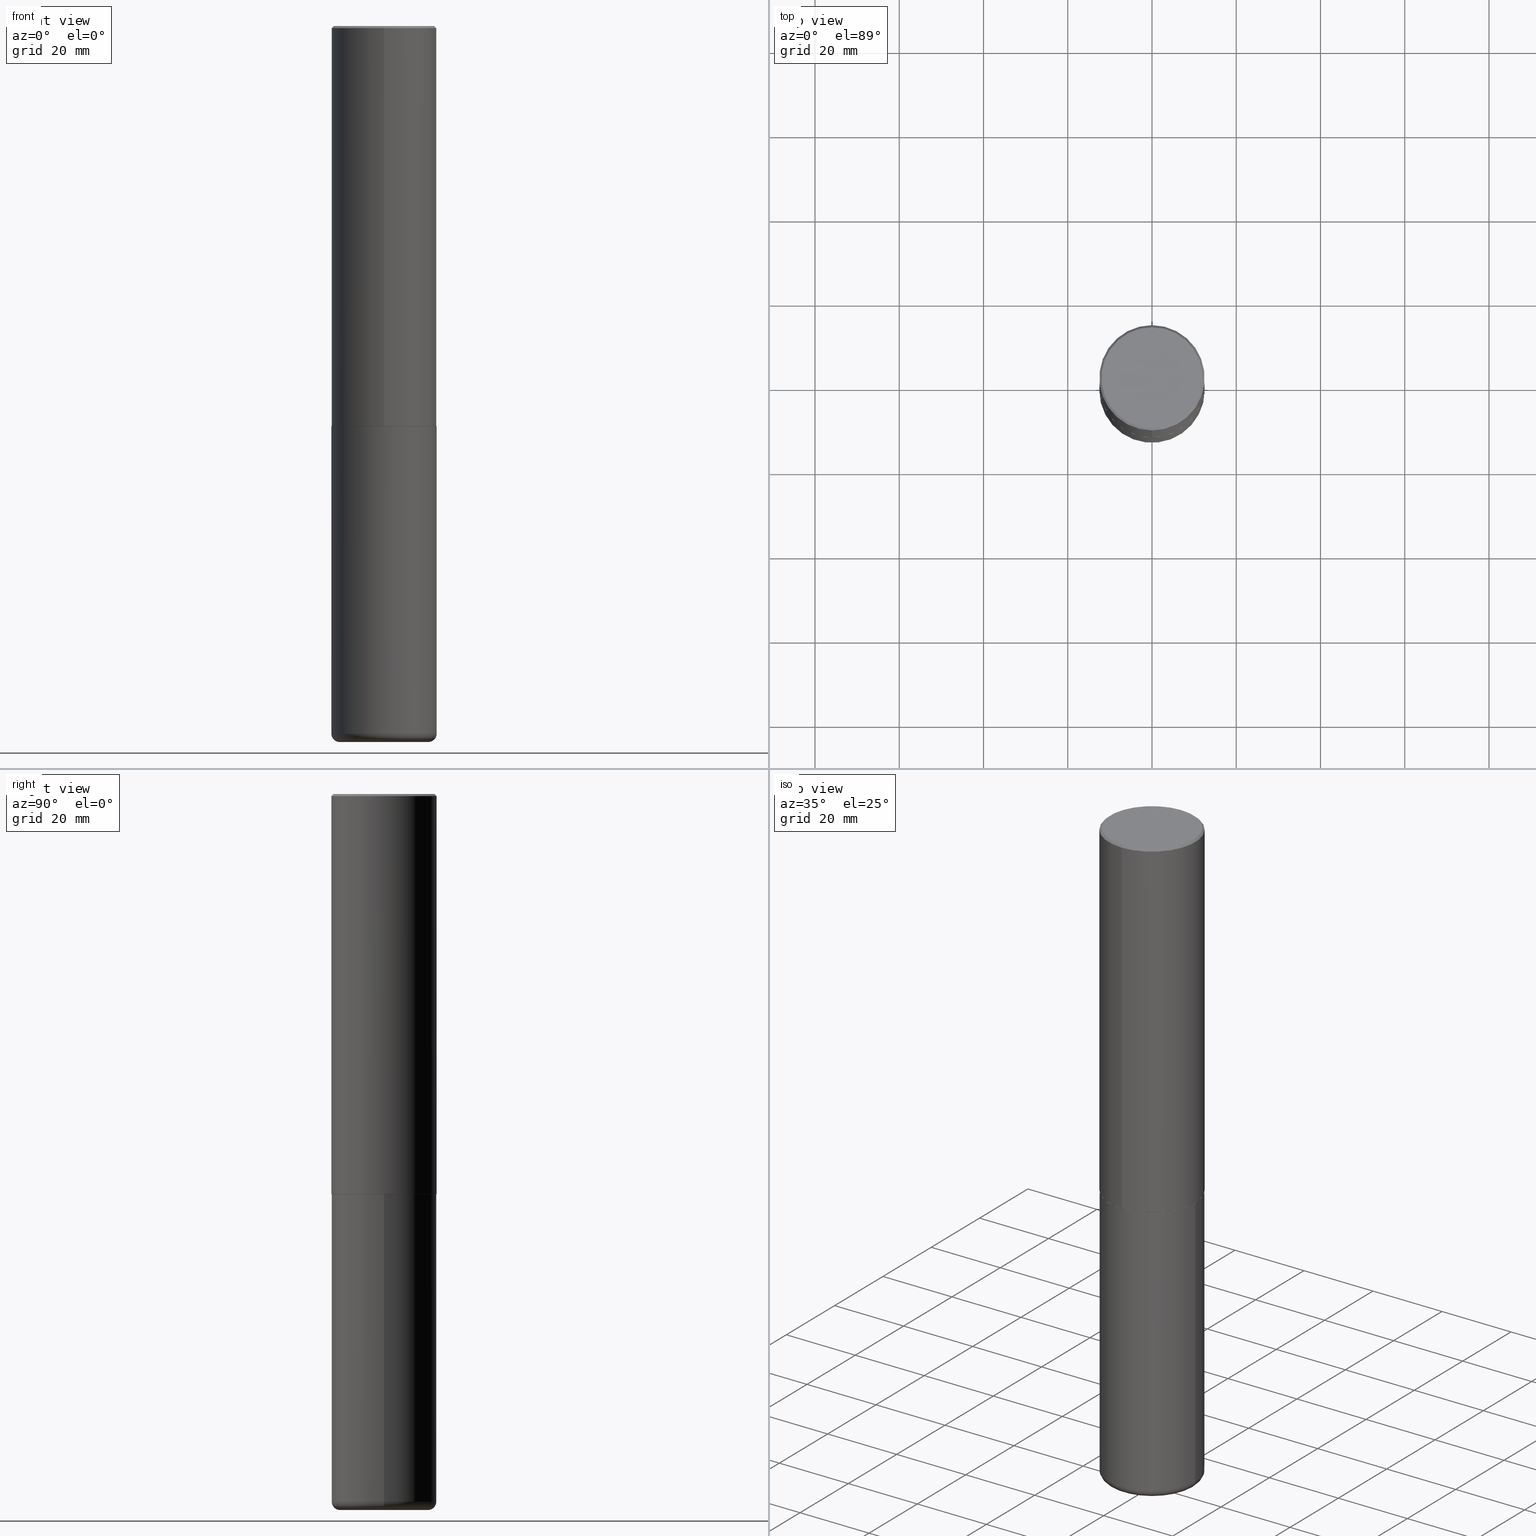
[diagram: canonical four-view strip — front | top / right | iso, engineering-drawing reading convention]
A machine part, canonical four-view strip (front | top / right | iso — engineering-drawing reading convention). The complete STEP part file that produces these views, byte-faithful:
ISO-10303-21;
HEADER;
FILE_DESCRIPTION (( 'STEP AP203' ),
    '1' );
FILE_NAME ('47619.STEP',
    '2024-03-06T19:43:05',
    ( '' ),
    ( '' ),
    'SwSTEP 2.0',
    'SolidWorks 2023',
    '' );
FILE_SCHEMA (( 'CONFIG_CONTROL_DESIGN' ));
ENDSEC;

DATA;
#1 = EDGE_LOOP ( 'NONE', ( #212, #139, #128, #180 ) ) ;
#2 = APPLICATION_PROTOCOL_DEFINITION ( 'international standard', 'config_control_design', 1994, #78 ) ;
#3 = CALENDAR_DATE ( 2024, 6, 3 ) ;
#4 = DIRECTION ( 'NONE',  ( 1.000000000000000000, -6.982962677686264344E-15, 4.883557194083111780E-29 ) ) ;
#5 = CONICAL_SURFACE ( 'NONE', #45, 0.4911499999999999755, 0.7853981633980288146 ) ;
#6 = APPROVAL_ROLE ( '' ) ;
#7 = DESIGN_CONTEXT ( 'detailed design', #109, 'design' ) ;
#8 = ORIENTED_EDGE ( 'NONE', *, *, #182, .F. ) ;
#9 = MECHANICAL_CONTEXT ( 'NONE', #78, 'mechanical' ) ;
#10 = ORIENTED_EDGE ( 'NONE', *, *, #232, .F. ) ;
#11 = PERSON_AND_ORGANIZATION ( #218, #291 ) ;
#12 = ORIENTED_EDGE ( 'NONE', *, *, #159, .F. ) ;
#13 = CIRCLE ( 'NONE', #235, 0.4921500000000003650 ) ;
#14 = VECTOR ( 'NONE', #324, 39.37007874015748143 ) ;
#15 = VERTEX_POINT ( 'NONE', #89 ) ;
#16 = VERTEX_POINT ( 'NONE', #20 ) ;
#17 = LINE ( 'NONE', #219, #104 ) ;
#18 = AXIS2_PLACEMENT_3D ( 'NONE', #32, #413, #126 ) ;
#19 = FACE_OUTER_BOUND ( 'NONE', #415, .T. ) ;
#20 = CARTESIAN_POINT ( 'NONE',  ( -0.4921499999999999764, -1.457898653934845976E-14, -3.740100000000000424 ) ) ;
#21 = DIRECTION ( 'NONE',  ( -2.445468806185136597E-29, 3.491481338843145583E-15, 1.000000000000000000 ) ) ;
#22 = AXIS2_PLACEMENT_3D ( 'NONE', #122, #254, #326 ) ;
#23 = DIRECTION ( 'NONE',  ( -6.982962677686265922E-15, -1.000000000000000000, 3.330506545156063496E-15 ) ) ;
#24 = AXIS2_PLACEMENT_3D ( 'NONE', #250, #21, #284 ) ;
#25 = EDGE_CURVE ( 'NONE', #16, #320, #401, .T. ) ;
#26 = CARTESIAN_POINT ( 'NONE',  ( 1.617481977786973037E-28, -2.309335587137633131E-14, -6.614199999999999413 ) ) ;
#27 = DIRECTION ( 'NONE',  ( 1.000000000000000000, -6.982962677686265922E-15, 4.876176775795935793E-29 ) ) ;
#28 = PERSON_AND_ORGANIZATION ( #218, #291 ) ;
#29 = DIRECTION ( 'NONE',  ( -2.445976594451651952E-29, 3.490754157143982552E-15, 1.000000000000000000 ) ) ;
#30 = CC_DESIGN_PERSON_AND_ORGANIZATION_ASSIGNMENT ( #130, #100, ( #37 ) ) ;
#31 = AXIS2_PLACEMENT_3D ( 'NONE', #323, #363, #168 ) ;
#32 = CARTESIAN_POINT ( 'NONE',  ( 9.148197060908621523E-29, -1.305576962313420868E-14, -3.740099999999999980 ) ) ;
#33 = FACE_OUTER_BOUND ( 'NONE', #213, .T. ) ;
#34 = APPROVAL_DATE_TIME ( #199, #67 ) ;
#35 = CARTESIAN_POINT ( 'NONE',  ( 9.148197060908621523E-29, -1.305576962313420868E-14, -3.740099999999999980 ) ) ;
#36 = EDGE_LOOP ( 'NONE', ( #243, #312 ) ) ;
#37 = SECURITY_CLASSIFICATION ( '', '', #39 ) ;
#38 = AXIS2_PLACEMENT_3D ( 'NONE', #62, #198, #325 ) ;
#39 = SECURITY_CLASSIFICATION_LEVEL ( 'unclassified' ) ;
#40 = VERTEX_POINT ( 'NONE', #220 ) ;
#41 = APPROVAL_DATE_TIME ( #210, #76 ) ;
#42 = EDGE_LOOP ( 'NONE', ( #114, #79, #43, #12 ) ) ;
#43 = ORIENTED_EDGE ( 'NONE', *, *, #202, .T. ) ;
#44 = DIMENSIONAL_EXPONENTS ( 1.000000000000000000, 0.000000000000000000, 0.000000000000000000, 0.000000000000000000, 0.000000000000000000, 0.000000000000000000, 0.000000000000000000 ) ;
#45 = AXIS2_PLACEMENT_3D ( 'NONE', #35, #29, #349 ) ;
#46 = TOROIDAL_SURFACE ( 'NONE', #355, 0.4134499999999999287, 0.07870000000000021423 ) ;
#47 = VERTEX_POINT ( 'NONE', #341 ) ;
#48 = DIRECTION ( 'NONE',  ( -2.445468806185136597E-29, 3.491481338843145583E-15, 1.000000000000000000 ) ) ;
#49 = DIRECTION ( 'NONE',  ( -2.445976594451651952E-29, 3.490754157143982552E-15, 1.000000000000000000 ) ) ;
#50 = AXIS2_PLACEMENT_3D ( 'NONE', #129, #96, #352 ) ;
#51 = EDGE_CURVE ( 'NONE', #15, #392, #354, .T. ) ;
#52 = CARTESIAN_POINT ( 'NONE',  ( 4.891953188903329688E-31, -6.981508314288001687E-17, -0.02000000000000010797 ) ) ;
#53 = DIRECTION ( 'NONE',  ( 5.024295867790978808E-15, 0.7071067811869604647, 0.7071067811861345698 ) ) ;
#54 = CARTESIAN_POINT ( 'NONE',  ( 9.146297882013029477E-29, -1.305848935540725085E-14, -3.740100000000000424 ) ) ;
#55 = AXIS2_PLACEMENT_3D ( 'NONE', #160, #418, #225 ) ;
#56 = CYLINDRICAL_SURFACE ( 'NONE', #22, 0.4921500000000000874 ) ;
#57 = PRODUCT_DEFINITION_FORMATION_WITH_SPECIFIED_SOURCE ( 'ANY', '', #253, .NOT_KNOWN. ) ;
#58 = CARTESIAN_POINT ( 'NONE',  ( 0.4921499999999999764, -2.653002095319962551E-14, -6.614199999999999413 ) ) ;
#59 = DIRECTION ( 'NONE',  ( 1.000000000000000000, -6.982962677686264344E-15, 4.883557194083111780E-29 ) ) ;
#60 = ORIENTED_EDGE ( 'NONE', *, *, #146, .F. ) ;
#61 = CARTESIAN_POINT ( 'NONE',  ( 0.4134499999999999287, -2.625524137183267217E-14, -6.692899999999999849 ) ) ;
#62 = CARTESIAN_POINT ( 'NONE',  ( 1.636727817291649966E-28, -2.336813545274328780E-14, -6.692899999999999849 ) ) ;
#63 = LOCAL_TIME ( 14, 43, 5.000000000000000000, #140 ) ;
#64 = CALENDAR_DATE ( 2024, 6, 3 ) ;
#65 = CIRCLE ( 'NONE', #270, 0.4921499999999999764 ) ;
#66 = FACE_OUTER_BOUND ( 'NONE', #113, .T. ) ;
#67 = APPROVAL ( #132, 'UNSPECIFIED' ) ;
#68 = DATE_TIME_ROLE ( 'creation_date' ) ;
#69 = ORIENTED_EDGE ( 'NONE', *, *, #174, .F. ) ;
#70 = DIRECTION ( 'NONE',  ( 1.000000000000000000, -6.982962677686266711E-15, 0.000000000000000000 ) ) ;
#71 = EDGE_CURVE ( 'NONE', #175, #40, #17, .T. ) ;
#72 = DATE_TIME_ROLE ( 'classification_date' ) ;
#73 = ORIENTED_EDGE ( 'NONE', *, *, #306, .T. ) ;
#74 = CC_DESIGN_SECURITY_CLASSIFICATION ( #37, ( #57 ) ) ;
#75 = ORIENTED_EDGE ( 'NONE', *, *, #182, .T. ) ;
#76 = APPROVAL ( #391, 'UNSPECIFIED' ) ;
#77 = ORIENTED_EDGE ( 'NONE', *, *, #51, .F. ) ;
#78 = APPLICATION_CONTEXT ( 'configuration controlled 3d designs of mechanical parts and assemblies' ) ;
#79 = ORIENTED_EDGE ( 'NONE', *, *, #186, .T. ) ;
#80 = DIRECTION ( 'NONE',  ( 6.982962677686265922E-15, 1.000000000000000000, -3.486624039460257331E-15 ) ) ;
#81 = VECTOR ( 'NONE', #404, 39.37007874015748854 ) ;
#82 = LOCAL_TIME ( 14, 43, 5.000000000000000000, #164 ) ;
#83 = CLOSED_SHELL ( 'NONE', ( #215, #157, #88, #347, #262, #255, #278, #181 ) ) ;
#84 = TOROIDAL_SURFACE ( 'NONE', #309, 0.4134499999999999287, 0.07870000000000021423 ) ;
#85 = CYLINDRICAL_SURFACE ( 'NONE', #179, 0.4921499999999999764 ) ;
#86 = EDGE_CURVE ( 'NONE', #175, #242, #356, .T. ) ;
#87 = LINE ( 'NONE', #248, #81 ) ;
#88 = ADVANCED_FACE ( 'NONE', ( #19 ), #405, .T. ) ;
#89 = CARTESIAN_POINT ( 'NONE',  ( -3.376394089603257868E-15, -0.4921499999999999764, -0.01999999999999839059 ) ) ;
#90 = DIRECTION ( 'NONE',  ( -6.982962677686265922E-15, -1.000000000000000000, 3.490754157143982552E-15 ) ) ;
#91 = DIRECTION ( 'NONE',  ( -2.445468806185136597E-29, 3.491481338843145583E-15, 1.000000000000000000 ) ) ;
#92 = PRODUCT_DEFINITION_SHAPE ( 'NONE', 'NONE',  #321 ) ;
#93 = CARTESIAN_POINT ( 'NONE',  ( -3.429682119145517860E-15, -0.4911500000000130206, -3.740099999999998204 ) ) ;
#94 = CARTESIAN_POINT ( 'NONE',  ( 3.436665081823295777E-15, 0.4921499999999998098, -0.02000000000000182188 ) ) ;
#95 = CARTESIAN_POINT ( 'NONE',  ( 3.496936074043333291E-15, 0.4921500000000000874, -1.717974658438411319E-15 ) ) ;
#96 = DIRECTION ( 'NONE',  ( -2.445976594451651952E-29, 3.490754157143982552E-15, 1.000000000000000000 ) ) ;
#97 = DIRECTION ( 'NONE',  ( -2.445976594451651952E-29, 3.490754157143982552E-15, 1.000000000000000000 ) ) ;
#98 = ADVANCED_BREP_SHAPE_REPRESENTATION ( '47619', ( #335, #346, #31 ), #247 ) ;
#99 = VERTEX_POINT ( 'NONE', #345 ) ;
#100 = PERSON_AND_ORGANIZATION_ROLE ( 'classification_officer' ) ;
#101 = CONICAL_SURFACE ( 'NONE', #336, 0.4911499999999999755, 0.7853981633980288146 ) ;
#102 = AXIS2_PLACEMENT_3D ( 'NONE', #382, #206, #361 ) ;
#103 = PERSON_AND_ORGANIZATION ( #218, #291 ) ;
#104 = VECTOR ( 'NONE', #53, 39.37007874015748143 ) ;
#105 = CARTESIAN_POINT ( 'NONE',  ( 4.891953188903329688E-31, -6.981508314288001687E-17, -0.02000000000000010797 ) ) ;
#106 = EDGE_LOOP ( 'NONE', ( #60, #177, #280, #244 ) ) ;
#107 = EDGE_LOOP ( 'NONE', ( #367, #125, #398, #366 ) ) ;
#108 = CARTESIAN_POINT ( 'NONE',  ( 3.436665081823295777E-15, 0.4921499999999998098, -0.02000000000000182188 ) ) ;
#109 = APPLICATION_CONTEXT ( 'configuration controlled 3d designs of mechanical parts and assemblies' ) ;
#110 = EDGE_LOOP ( 'NONE', ( #173, #147, #77, #143 ) ) ;
#111 = LOCAL_TIME ( 14, 43, 5.000000000000000000, #137 ) ;
#112 = CC_DESIGN_PERSON_AND_ORGANIZATION_ASSIGNMENT ( #11, #204, ( #57 ) ) ;
#113 = EDGE_LOOP ( 'NONE', ( #399, #209, #275, #10 ) ) ;
#114 = ORIENTED_EDGE ( 'NONE', *, *, #223, .F. ) ;
#115 = PLANE ( 'NONE',  #318 ) ;
#116 = CIRCLE ( 'NONE', #371, 0.4721499999999996255 ) ;
#117 = CARTESIAN_POINT ( 'NONE',  ( 3.297005828269567997E-15, 0.4721499999999996255, -1.537349919972549256E-15 ) ) ;
#118 = DIRECTION ( 'NONE',  ( 2.445976594451651392E-29, -3.490754157143982552E-15, -1.000000000000000000 ) ) ;
#119 = CARTESIAN_POINT ( 'NONE',  ( 4.891953188903329688E-31, -6.981508314288001687E-17, -0.02000000000000010797 ) ) ;
#120 = VECTOR ( 'NONE', #158, 39.37007874015748143 ) ;
#121 = FACE_OUTER_BOUND ( 'NONE', #110, .T. ) ;
#122 = CARTESIAN_POINT ( 'NONE',  ( 0.000000000000000000, 0.000000000000000000, 0.000000000000000000 ) ) ;
#123 = DIRECTION ( 'NONE',  ( -2.445468806185136597E-29, 3.491481338843145583E-15, 1.000000000000000000 ) ) ;
#124 = CARTESIAN_POINT ( 'NONE',  ( 1.636727817291649966E-28, -2.336813545274328780E-14, -6.692899999999999849 ) ) ;
#125 = ORIENTED_EDGE ( 'NONE', *, *, #396, .T. ) ;
#126 = DIRECTION ( 'NONE',  ( -6.982962677686265922E-15, -1.000000000000000000, 3.337287582609300506E-15 ) ) ;
#127 = FACE_OUTER_BOUND ( 'NONE', #238, .T. ) ;
#128 = ORIENTED_EDGE ( 'NONE', *, *, #306, .F. ) ;
#129 = CARTESIAN_POINT ( 'NONE',  ( -5.420756467185317189E-45, 7.736185299407739239E-31, 2.216193106459615290E-16 ) ) ;
#130 = PERSON_AND_ORGANIZATION ( #218, #291 ) ;
#131 = DIRECTION ( 'NONE',  ( -2.445976594451651672E-29, 3.490754157143982552E-15, 1.000000000000000000 ) ) ;
#132 = APPROVAL_STATUS ( 'not_yet_approved' ) ;
#133 = EDGE_CURVE ( 'NONE', #310, #16, #402, .T. ) ;
#134 = DIRECTION ( 'NONE',  ( -6.982962677686266711E-15, -1.000000000000000000, 3.491481338843145583E-15 ) ) ;
#135 = AXIS2_PLACEMENT_3D ( 'NONE', #377, #340, #90 ) ;
#136 = EDGE_CURVE ( 'NONE', #308, #40, #13, .T. ) ;
#137 = COORDINATED_UNIVERSAL_TIME_OFFSET ( 5, 0, .BEHIND. ) ;
#138 = CIRCLE ( 'NONE', #397, 0.07870000000000017260 ) ;
#139 = ORIENTED_EDGE ( 'NONE', *, *, #152, .T. ) ;
#140 = COORDINATED_UNIVERSAL_TIME_OFFSET ( 5, 0, .BEHIND. ) ;
#141 = ORIENTED_EDGE ( 'NONE', *, *, #133, .T. ) ;
#142 = PRODUCT_RELATED_PRODUCT_CATEGORY ( 'detail', '', ( #253 ) ) ;
#143 = ORIENTED_EDGE ( 'NONE', *, *, #202, .F. ) ;
#144 = AXIS2_PLACEMENT_3D ( 'NONE', #119, #49, #221 ) ;
#145 = ORIENTED_EDGE ( 'NONE', *, *, #51, .T. ) ;
#146 = EDGE_CURVE ( 'NONE', #47, #15, #87, .T. ) ;
#147 = ORIENTED_EDGE ( 'NONE', *, *, #223, .T. ) ;
#148 = DIRECTION ( 'NONE',  ( 2.445976594451651952E-29, -3.490754157143982552E-15, -1.000000000000000000 ) ) ;
#149 = CARTESIAN_POINT ( 'NONE',  ( -0.4921499999999999764, 3.496936074043332897E-15, -2.420853904668951509E-29 ) ) ;
#150 = DIRECTION ( 'NONE',  ( -2.445468806185136877E-29, 3.491481338843145188E-15, 1.000000000000000000 ) ) ;
#151 = CC_DESIGN_DATE_AND_TIME_ASSIGNMENT ( #359, #68, ( #321 ) ) ;
#152 = EDGE_CURVE ( 'NONE', #360, #310, #138, .T. ) ;
#153 = DIRECTION ( 'NONE',  ( -6.982962677686265922E-15, -1.000000000000000000, 3.486624039460257331E-15 ) ) ;
#154 = VECTOR ( 'NONE', #150, 39.37007874015748143 ) ;
#155 = CIRCLE ( 'NONE', #24, 0.4134499999999999287 ) ;
#156 = DIRECTION ( 'NONE',  ( -2.445976594451651952E-29, 3.490754157143982552E-15, 1.000000000000000000 ) ) ;
#157 = ADVANCED_FACE ( 'NONE', ( #121 ), #252, .T. ) ;
#158 = DIRECTION ( 'NONE',  ( -4.937700262167413974E-15, -0.7071067811869555797, 0.7071067811861394548 ) ) ;
#159 = EDGE_CURVE ( 'NONE', #392, #15, #339, .T. ) ;
#160 = CARTESIAN_POINT ( 'NONE',  ( 9.146297882013029477E-29, -1.305848935540725085E-14, -3.740100000000000424 ) ) ;
#161 = APPROVAL_PERSON_ORGANIZATION ( #169, #207, #165 ) ;
#162 = DIRECTION ( 'NONE',  ( 1.000000000000000000, -6.982962677686266711E-15, 0.000000000000000000 ) ) ;
#163 = AXIS2_PLACEMENT_3D ( 'NONE', #52, #287, #153 ) ;
#164 = COORDINATED_UNIVERSAL_TIME_OFFSET ( 5, 0, .BEHIND. ) ;
#165 = APPROVAL_ROLE ( '' ) ;
#166 = DIRECTION ( 'NONE',  ( -2.445976594451651392E-29, 3.490754157143982552E-15, 1.000000000000000000 ) ) ;
#167 = CC_DESIGN_PERSON_AND_ORGANIZATION_ASSIGNMENT ( #28, #293, ( #253 ) ) ;
#168 = DIRECTION ( 'NONE',  ( 1.000000000000000000, 0.000000000000000000, 0.000000000000000000 ) ) ;
#169 = PERSON_AND_ORGANIZATION ( #218, #291 ) ;
#170 = FACE_OUTER_BOUND ( 'NONE', #42, .T. ) ;
#171 =( CONVERSION_BASED_UNIT ( 'INCH', #236 ) LENGTH_UNIT ( ) NAMED_UNIT ( #44 ) );
#172 = EDGE_CURVE ( 'NONE', #360, #368, #155, .T. ) ;
#173 = ORIENTED_EDGE ( 'NONE', *, *, #136, .T. ) ;
#174 = EDGE_CURVE ( 'NONE', #47, #99, #116, .T. ) ;
#175 = VERTEX_POINT ( 'NONE', #403 ) ;
#176 = PERSON_AND_ORGANIZATION ( #218, #291 ) ;
#177 = ORIENTED_EDGE ( 'NONE', *, *, #393, .F. ) ;
#178 = ORIENTED_EDGE ( 'NONE', *, *, #172, .F. ) ;
#179 = AXIS2_PLACEMENT_3D ( 'NONE', #216, #48, #27 ) ;
#180 = ORIENTED_EDGE ( 'NONE', *, *, #344, .F. ) ;
#181 = ADVANCED_FACE ( 'NONE', ( #311 ), #115, .F. ) ;
#182 = EDGE_CURVE ( 'NONE', #320, #16, #65, .T. ) ;
#183 = DIRECTION ( 'NONE',  ( -2.445976594451651952E-29, 3.490754157143982552E-15, 1.000000000000000000 ) ) ;
#184 = DIRECTION ( 'NONE',  ( -2.445976594451651952E-29, 3.490754157143982552E-15, 1.000000000000000000 ) ) ;
#185 = CC_DESIGN_APPROVAL ( #76, ( #57 ) ) ;
#186 = EDGE_CURVE ( 'NONE', #40, #308, #251, .T. ) ;
#187 = CARTESIAN_POINT ( 'NONE',  ( 9.148197060908621523E-29, -1.305576962313420868E-14, -3.740099999999999980 ) ) ;
#188 = DIRECTION ( 'NONE',  ( 7.105427357601001859E-15, 1.000000000000000000, -3.491481338843145583E-15 ) ) ;
#189 = DIRECTION ( 'NONE',  ( -2.445468806185136597E-29, 3.491481338843145583E-15, 1.000000000000000000 ) ) ;
#190 = ADVANCED_FACE ( 'NONE', ( #370 ), #85, .T. ) ;
#191 = AXIS2_PLACEMENT_3D ( 'NONE', #342, #91, #372 ) ;
#192 = AXIS2_PLACEMENT_3D ( 'NONE', #239, #271, #70 ) ;
#193 = LINE ( 'NONE', #256, #386 ) ;
#194 = ORIENTED_EDGE ( 'NONE', *, *, #300, .F. ) ;
#195 = CARTESIAN_POINT ( 'NONE',  ( 1.617481977786973037E-28, -2.309335587137633131E-14, -6.614199999999999413 ) ) ;
#196 = LINE ( 'NONE', #94, #266 ) ;
#197 = APPROVAL_ROLE ( '' ) ;
#198 = DIRECTION ( 'NONE',  ( 2.438088387897960049E-29, -3.491481338843145188E-15, -1.000000000000000000 ) ) ;
#199 = DATE_AND_TIME ( #64, #82 ) ;
#200 = APPROVAL_DATE_TIME ( #237, #207 ) ;
#201 = LINE ( 'NONE', #95, #14 ) ;
#202 = EDGE_CURVE ( 'NONE', #308, #15, #260, .T. ) ;
#203 = PERSON_AND_ORGANIZATION ( #218, #291 ) ;
#204 = PERSON_AND_ORGANIZATION_ROLE ( 'design_supplier' ) ;
#205 = ORIENTED_EDGE ( 'NONE', *, *, #274, .F. ) ;
#206 = DIRECTION ( 'NONE',  ( -2.445468806185136597E-29, 3.491481338843145583E-15, 1.000000000000000000 ) ) ;
#207 = APPROVAL ( #233, 'UNSPECIFIED' ) ;
#208 = CONICAL_SURFACE ( 'NONE', #337, 0.4921499999999999209, 0.7853981633974467247 ) ;
#209 = ORIENTED_EDGE ( 'NONE', *, *, #71, .T. ) ;
#210 = DATE_AND_TIME ( #331, #111 ) ;
#211 = ORIENTED_EDGE ( 'NONE', *, *, #344, .T. ) ;
#212 = ORIENTED_EDGE ( 'NONE', *, *, #267, .T. ) ;
#213 = EDGE_LOOP ( 'NONE', ( #400, #302, #211, #395 ) ) ;
#214 = AXIS2_PLACEMENT_3D ( 'NONE', #381, #166, #379 ) ;
#215 = ADVANCED_FACE ( 'NONE', ( #66 ), #5, .T. ) ;
#216 = CARTESIAN_POINT ( 'NONE',  ( 0.000000000000000000, 0.000000000000000000, 0.000000000000000000 ) ) ;
#217 = CARTESIAN_POINT ( 'NONE',  ( -5.420756467185317189E-45, 7.736185299407739239E-31, 2.216193106459615290E-16 ) ) ;
#218 = PERSON ( 'UNSPECIFIED', 'UNSPECIFIED', 'UNSPECIFIED', ('UNSPECIFIED'), ('UNSPECIFIED'), ('UNSPECIFIED') ) ;
#219 = CARTESIAN_POINT ( 'NONE',  ( 3.489830646685823002E-15, 0.4911499999999869304, -3.740100000000001312 ) ) ;
#220 = CARTESIAN_POINT ( 'NONE',  ( 3.496936074043380229E-15, 0.4921499999999873198, -3.739100000000002311 ) ) ;
#221 = DIRECTION ( 'NONE',  ( -6.982962677686265922E-15, -1.000000000000000000, 3.486624039460257331E-15 ) ) ;
#222 = DIRECTION ( 'NONE',  ( -2.445468806185136597E-29, 3.491481338843145583E-15, 1.000000000000000000 ) ) ;
#223 = EDGE_CURVE ( 'NONE', #40, #392, #201, .T. ) ;
#224 = LINE ( 'NONE', #289, #120 ) ;
#225 = DIRECTION ( 'NONE',  ( -1.000000000000000000, 6.982962677686265922E-15, -4.876176775795935793E-29 ) ) ;
#226 = PERSON_AND_ORGANIZATION ( #218, #291 ) ;
#227 = ADVANCED_FACE ( 'NONE', ( #410 ), #294, .F. ) ;
#228 = FACE_OUTER_BOUND ( 'NONE', #384, .T. ) ;
#229 = ADVANCED_FACE ( 'NONE', ( #409 ), #84, .T. ) ;
#230 =( NAMED_UNIT ( * ) SI_UNIT ( $, .STERADIAN. ) SOLID_ANGLE_UNIT ( ) );
#231 = AXIS2_PLACEMENT_3D ( 'NONE', #195, #222, #162 ) ;
#232 = EDGE_CURVE ( 'NONE', #242, #308, #224, .T. ) ;
#233 = APPROVAL_STATUS ( 'not_yet_approved' ) ;
#234 = CARTESIAN_POINT ( 'NONE',  ( 0.4134499999999999287, -2.598046179046571568E-14, -6.614199999999999413 ) ) ;
#235 = AXIS2_PLACEMENT_3D ( 'NONE', #282, #183, #23 ) ;
#236 = LENGTH_MEASURE_WITH_UNIT ( LENGTH_MEASURE( 0.02539999999999999897 ), #394 );
#237 = DATE_AND_TIME ( #3, #63 ) ;
#238 = EDGE_LOOP ( 'NONE', ( #328, #279 ) ) ;
#239 = CARTESIAN_POINT ( 'NONE',  ( 1.617481977786973037E-28, -2.309335587137633131E-14, -6.614199999999999413 ) ) ;
#240 = ORIENTED_EDGE ( 'NONE', *, *, #146, .T. ) ;
#241 = CIRCLE ( 'NONE', #18, 0.4911499999999999755 ) ;
#242 = VERTEX_POINT ( 'NONE', #93 ) ;
#243 = ORIENTED_EDGE ( 'NONE', *, *, #393, .T. ) ;
#244 = ORIENTED_EDGE ( 'NONE', *, *, #159, .T. ) ;
#245 = DIRECTION ( 'NONE',  ( -6.982962677686265922E-15, -1.000000000000000000, 3.330506545156063496E-15 ) ) ;
#246 = CIRCLE ( 'NONE', #299, 0.4134499999999999287 ) ;
#247 =( GEOMETRIC_REPRESENTATION_CONTEXT ( 3 ) GLOBAL_UNCERTAINTY_ASSIGNED_CONTEXT ( ( #358 ) ) GLOBAL_UNIT_ASSIGNED_CONTEXT ( ( #171, #259, #230 ) ) REPRESENTATION_CONTEXT ( 'NONE', 'WORKASPACE' ) );
#248 = CARTESIAN_POINT ( 'NONE',  ( -3.376394089603257868E-15, -0.4921499999999999764, -0.01999999999999839059 ) ) ;
#249 = DIRECTION ( 'NONE',  ( 6.982962677686265922E-15, 1.000000000000000000, -3.490754157143982552E-15 ) ) ;
#250 = CARTESIAN_POINT ( 'NONE',  ( 1.636727817291649966E-28, -2.336813545274328780E-14, -6.692899999999999849 ) ) ;
#251 = CIRCLE ( 'NONE', #376, 0.4921500000000003650 ) ;
#252 = CYLINDRICAL_SURFACE ( 'NONE', #135, 0.4921500000000000874 ) ;
#253 = PRODUCT ( '47619', '47619', '', ( #9 ) ) ;
#254 = DIRECTION ( 'NONE',  ( -2.445976594451651952E-29, 3.490754157143982552E-15, 1.000000000000000000 ) ) ;
#255 = ADVANCED_FACE ( 'NONE', ( #411 ), #101, .T. ) ;
#256 = CARTESIAN_POINT ( 'NONE',  ( 0.4921499999999999764, -3.436665081823295777E-15, 2.399810400207969603E-29 ) ) ;
#257 = CC_DESIGN_APPROVAL ( #207, ( #37 ) ) ;
#258 = PLANE ( 'NONE',  #214 ) ;
#259 =( NAMED_UNIT ( * ) PLANE_ANGLE_UNIT ( ) SI_UNIT ( $, .RADIAN. ) );
#260 = LINE ( 'NONE', #292, #369 ) ;
#261 = CYLINDRICAL_SURFACE ( 'NONE', #102, 0.4921499999999999764 ) ;
#262 = ADVANCED_FACE ( 'NONE', ( #170 ), #56, .T. ) ;
#263 = DATE_AND_TIME ( #329, #343 ) ;
#264 = DIRECTION ( 'NONE',  ( -2.445468806185136877E-29, 3.491481338843145188E-15, 1.000000000000000000 ) ) ;
#265 = PERSON_AND_ORGANIZATION_ROLE ( 'creator' ) ;
#266 = VECTOR ( 'NONE', #351, 39.37007874015748143 ) ;
#267 = EDGE_CURVE ( 'NONE', #368, #360, #246, .T. ) ;
#268 = CIRCLE ( 'NONE', #285, 0.07870000000000017260 ) ;
#269 = DIRECTION ( 'NONE',  ( 1.000000000000000000, -6.982962677686279332E-15, 0.000000000000000000 ) ) ;
#270 = AXIS2_PLACEMENT_3D ( 'NONE', #54, #189, #316 ) ;
#271 = DIRECTION ( 'NONE',  ( -2.445468806185136597E-29, 3.491481338843145583E-15, 1.000000000000000000 ) ) ;
#272 = ORIENTED_EDGE ( 'NONE', *, *, #186, .F. ) ;
#273 = FACE_OUTER_BOUND ( 'NONE', #107, .T. ) ;
#274 = EDGE_CURVE ( 'NONE', #301, #320, #193, .T. ) ;
#275 = ORIENTED_EDGE ( 'NONE', *, *, #136, .F. ) ;
#276 = APPROVAL_PERSON_ORGANIZATION ( #203, #76, #6 ) ;
#277 = EDGE_LOOP ( 'NONE', ( #75, #295 ) ) ;
#278 = ADVANCED_FACE ( 'NONE', ( #127 ), #258, .F. ) ;
#279 = ORIENTED_EDGE ( 'NONE', *, *, #86, .F. ) ;
#280 = ORIENTED_EDGE ( 'NONE', *, *, #300, .T. ) ;
#281 = DIRECTION ( 'NONE',  ( 6.982962677686265922E-15, 1.000000000000000000, -3.486624039460257331E-15 ) ) ;
#282 = CARTESIAN_POINT ( 'NONE',  ( 9.145751084314172604E-29, -1.305227886897706845E-14, -3.739100000000000534 ) ) ;
#283 = DIRECTION ( 'NONE',  ( -6.982962677686265922E-15, -1.000000000000000000, 3.337287582609300506E-15 ) ) ;
#284 = DIRECTION ( 'NONE',  ( 1.000000000000000000, -6.982962677686261977E-15, 0.000000000000000000 ) ) ;
#285 = AXIS2_PLACEMENT_3D ( 'NONE', #234, #134, #269 ) ;
#286 = CLOSED_SHELL ( 'NONE', ( #190, #229, #227, #374, #333, #327 ) ) ;
#287 = DIRECTION ( 'NONE',  ( -2.445976594451651952E-29, 3.490754157143982552E-15, 1.000000000000000000 ) ) ;
#288 = CARTESIAN_POINT ( 'NONE',  ( 9.148197060908621523E-29, -1.305576962313420868E-14, -3.740099999999999980 ) ) ;
#289 = CARTESIAN_POINT ( 'NONE',  ( -3.429682119145517860E-15, -0.4911500000000130206, -3.740099999999998204 ) ) ;
#290 = APPLICATION_PROTOCOL_DEFINITION ( 'international standard', 'config_control_design', 1994, #109 ) ;
#291 = ORGANIZATION ( 'UNSPECIFIED', 'UNSPECIFIED', '' ) ;
#292 = CARTESIAN_POINT ( 'NONE',  ( -3.436665081823296565E-15, -0.4921500000000000874, 1.717974658438411319E-15 ) ) ;
#293 = PERSON_AND_ORGANIZATION_ROLE ( 'design_owner' ) ;
#294 = PLANE ( 'NONE',  #55 ) ;
#295 = ORIENTED_EDGE ( 'NONE', *, *, #25, .T. ) ;
#296 = COORDINATED_UNIVERSAL_TIME_OFFSET ( 5, 0, .BEHIND. ) ;
#297 = DIRECTION ( 'NONE',  ( -2.445468806185136597E-29, 3.491481338843145583E-15, 1.000000000000000000 ) ) ;
#298 = COORDINATED_UNIVERSAL_TIME_OFFSET ( 5, 0, .BEHIND. ) ;
#299 = AXIS2_PLACEMENT_3D ( 'NONE', #124, #378, #319 ) ;
#300 = EDGE_CURVE ( 'NONE', #99, #392, #196, .T. ) ;
#301 = VERTEX_POINT ( 'NONE', #58 ) ;
#302 = ORIENTED_EDGE ( 'NONE', *, *, #172, .T. ) ;
#303 = PERSON_AND_ORGANIZATION_ROLE ( 'creator' ) ;
#304 = SHAPE_DEFINITION_REPRESENTATION ( #92, #98 ) ;
#305 = ORIENTED_EDGE ( 'NONE', *, *, #232, .T. ) ;
#306 = EDGE_CURVE ( 'NONE', #301, #310, #317, .T. ) ;
#307 = AXIS2_PLACEMENT_3D ( 'NONE', #375, #148, #281 ) ;
#308 = VERTEX_POINT ( 'NONE', #322 ) ;
#309 = AXIS2_PLACEMENT_3D ( 'NONE', #26, #123, #59 ) ;
#310 = VERTEX_POINT ( 'NONE', #383 ) ;
#311 = FACE_OUTER_BOUND ( 'NONE', #36, .T. ) ;
#312 = ORIENTED_EDGE ( 'NONE', *, *, #174, .T. ) ;
#313 = CC_DESIGN_APPROVAL ( #67, ( #321 ) ) ;
#314 = DIRECTION ( 'NONE',  ( -2.445976594451651952E-29, 3.490754157143982552E-15, 1.000000000000000000 ) ) ;
#315 = CARTESIAN_POINT ( 'NONE',  ( -0.4134499999999999287, -2.015561693037619641E-14, -6.614199999999999413 ) ) ;
#316 = DIRECTION ( 'NONE',  ( 1.000000000000000000, -6.982962677686265922E-15, 0.000000000000000000 ) ) ;
#317 = CIRCLE ( 'NONE', #231, 0.4921499999999999209 ) ;
#318 = AXIS2_PLACEMENT_3D ( 'NONE', #117, #118, #249 ) ;
#319 = DIRECTION ( 'NONE',  ( 1.000000000000000000, -6.982962677686261977E-15, 0.000000000000000000 ) ) ;
#320 = VERTEX_POINT ( 'NONE', #385 ) ;
#321 = PRODUCT_DEFINITION ( 'UNKNOWN', '', #57, #7 ) ;
#322 = CARTESIAN_POINT ( 'NONE',  ( -3.436665081823207030E-15, -0.4921500000000134101, -3.739099999999998758 ) ) ;
#323 = CARTESIAN_POINT ( 'NONE',  ( 0.000000000000000000, 0.000000000000000000, 0.000000000000000000 ) ) ;
#324 = DIRECTION ( 'NONE',  ( -2.445976594451651672E-29, 3.490754157143982552E-15, 1.000000000000000000 ) ) ;
#325 = DIRECTION ( 'NONE',  ( -1.000000000000000000, 6.982962677686265922E-15, -4.876176775795935793E-29 ) ) ;
#326 = DIRECTION ( 'NONE',  ( -6.982962677686265922E-15, -1.000000000000000000, 3.490754157143982552E-15 ) ) ;
#327 = ADVANCED_FACE ( 'NONE', ( #228 ), #353, .T. ) ;
#328 = ORIENTED_EDGE ( 'NONE', *, *, #389, .F. ) ;
#329 = CALENDAR_DATE ( 2024, 6, 3 ) ;
#330 = ORIENTED_EDGE ( 'NONE', *, *, #267, .F. ) ;
#331 = CALENDAR_DATE ( 2024, 6, 3 ) ;
#332 = EDGE_LOOP ( 'NONE', ( #338, #362, #305, #272 ) ) ;
#333 = ADVANCED_FACE ( 'NONE', ( #33 ), #46, .T. ) ;
#334 = EDGE_LOOP ( 'NONE', ( #73, #141, #8, #205 ) ) ;
#335 = MANIFOLD_SOLID_BREP ( 'Body-Move/Copy2[1]', #286 ) ;
#336 = AXIS2_PLACEMENT_3D ( 'NONE', #288, #97, #414 ) ;
#337 = AXIS2_PLACEMENT_3D ( 'NONE', #105, #387, #80 ) ;
#338 = ORIENTED_EDGE ( 'NONE', *, *, #71, .F. ) ;
#339 = CIRCLE ( 'NONE', #144, 0.4921499999999999209 ) ;
#340 = DIRECTION ( 'NONE',  ( -2.445976594451651952E-29, 3.490754157143982552E-15, 1.000000000000000000 ) ) ;
#341 = CARTESIAN_POINT ( 'NONE',  ( -3.307789109625541747E-15, -0.4721499999999996255, 1.869778885941491673E-15 ) ) ;
#342 = CARTESIAN_POINT ( 'NONE',  ( 9.146297882013029477E-29, -1.305848935540725085E-14, -3.740100000000000424 ) ) ;
#343 = LOCAL_TIME ( 14, 43, 5.000000000000000000, #296 ) ;
#344 = EDGE_CURVE ( 'NONE', #368, #301, #268, .T. ) ;
#345 = CARTESIAN_POINT ( 'NONE',  ( 3.366835455046432084E-15, 0.4721499999999996255, -1.426540264649568516E-15 ) ) ;
#346 = MANIFOLD_SOLID_BREP ( 'Body-Move/Copy2[2]', #83 ) ;
#347 = ADVANCED_FACE ( 'NONE', ( #390 ), #208, .T. ) ;
#348 = DIRECTION ( 'NONE',  ( -6.982962677686265922E-15, -1.000000000000000000, 3.490754157143982946E-15 ) ) ;
#349 = DIRECTION ( 'NONE',  ( -6.982962677686265922E-15, -1.000000000000000000, 3.337287582609300506E-15 ) ) ;
#350 = CIRCLE ( 'NONE', #50, 0.4721499999999996255 ) ;
#351 = DIRECTION ( 'NONE',  ( 4.937700262164540154E-15, 0.7071067811865440200, -0.7071067811865511255 ) ) ;
#352 = DIRECTION ( 'NONE',  ( -6.982962677686265922E-15, -1.000000000000000000, 3.490754157143982946E-15 ) ) ;
#353 = PLANE ( 'NONE',  #38 ) ;
#354 = CIRCLE ( 'NONE', #163, 0.4921499999999999209 ) ;
#355 = AXIS2_PLACEMENT_3D ( 'NONE', #357, #297, #4 ) ;
#356 = CIRCLE ( 'NONE', #407, 0.4911499999999999755 ) ;
#357 = CARTESIAN_POINT ( 'NONE',  ( 1.617481977786973037E-28, -2.309335587137633131E-14, -6.614199999999999413 ) ) ;
#358 = UNCERTAINTY_MEASURE_WITH_UNIT (LENGTH_MEASURE( 1.000000000000000082E-05 ), #171, 'distance_accuracy_value', 'NONE');
#359 = DATE_AND_TIME ( #388, #380 ) ;
#360 = VERTEX_POINT ( 'NONE', #417 ) ;
#361 = DIRECTION ( 'NONE',  ( 1.000000000000000000, -6.982962677686265922E-15, 4.876176775795935793E-29 ) ) ;
#362 = ORIENTED_EDGE ( 'NONE', *, *, #86, .T. ) ;
#363 = DIRECTION ( 'NONE',  ( 0.000000000000000000, 0.000000000000000000, 1.000000000000000000 ) ) ;
#364 = CC_DESIGN_PERSON_AND_ORGANIZATION_ASSIGNMENT ( #103, #265, ( #321 ) ) ;
#365 = CIRCLE ( 'NONE', #192, 0.4921499999999999209 ) ;
#366 = ORIENTED_EDGE ( 'NONE', *, *, #25, .F. ) ;
#367 = ORIENTED_EDGE ( 'NONE', *, *, #133, .F. ) ;
#368 = VERTEX_POINT ( 'NONE', #61 ) ;
#369 = VECTOR ( 'NONE', #131, 39.37007874015748143 ) ;
#370 = FACE_OUTER_BOUND ( 'NONE', #334, .T. ) ;
#371 = AXIS2_PLACEMENT_3D ( 'NONE', #217, #184, #348 ) ;
#372 = DIRECTION ( 'NONE',  ( 1.000000000000000000, -6.982962677686265922E-15, 0.000000000000000000 ) ) ;
#373 = CARTESIAN_POINT ( 'NONE',  ( 9.145751084314172604E-29, -1.305227886897706845E-14, -3.739100000000000534 ) ) ;
#374 = ADVANCED_FACE ( 'NONE', ( #273 ), #261, .T. ) ;
#375 = CARTESIAN_POINT ( 'NONE',  ( 4.891953188903329688E-31, -6.981508314288001687E-17, -0.02000000000000010797 ) ) ;
#376 = AXIS2_PLACEMENT_3D ( 'NONE', #373, #156, #245 ) ;
#377 = CARTESIAN_POINT ( 'NONE',  ( 0.000000000000000000, 0.000000000000000000, 0.000000000000000000 ) ) ;
#378 = DIRECTION ( 'NONE',  ( -2.445468806185136597E-29, 3.491481338843145583E-15, 1.000000000000000000 ) ) ;
#379 = DIRECTION ( 'NONE',  ( -6.982962677686265922E-15, -1.000000000000000000, 3.490754157143982552E-15 ) ) ;
#380 = LOCAL_TIME ( 14, 43, 5.000000000000000000, #298 ) ;
#381 = CARTESIAN_POINT ( 'NONE',  ( 9.148197060908621523E-29, -1.305576962313420868E-14, -3.740099999999999980 ) ) ;
#382 = CARTESIAN_POINT ( 'NONE',  ( 0.000000000000000000, 0.000000000000000000, 0.000000000000000000 ) ) ;
#383 = CARTESIAN_POINT ( 'NONE',  ( -0.4921499999999999764, -1.959641979733300078E-14, -6.614199999999999413 ) ) ;
#384 = EDGE_LOOP ( 'NONE', ( #330, #178 ) ) ;
#385 = CARTESIAN_POINT ( 'NONE',  ( 0.4921499999999999764, -1.649515443723054663E-14, -3.740100000000000424 ) ) ;
#386 = VECTOR ( 'NONE', #264, 39.37007874015748143 ) ;
#387 = DIRECTION ( 'NONE',  ( 2.445976594451651952E-29, -3.490754157143982552E-15, -1.000000000000000000 ) ) ;
#388 = CALENDAR_DATE ( 2024, 6, 3 ) ;
#389 = EDGE_CURVE ( 'NONE', #242, #175, #241, .T. ) ;
#390 = FACE_OUTER_BOUND ( 'NONE', #106, .T. ) ;
#391 = APPROVAL_STATUS ( 'not_yet_approved' ) ;
#392 = VERTEX_POINT ( 'NONE', #108 ) ;
#393 = EDGE_CURVE ( 'NONE', #99, #47, #350, .T. ) ;
#394 =( LENGTH_UNIT ( ) NAMED_UNIT ( * ) SI_UNIT ( $, .METRE. ) );
#395 = ORIENTED_EDGE ( 'NONE', *, *, #396, .F. ) ;
#396 = EDGE_CURVE ( 'NONE', #310, #301, #365, .T. ) ;
#397 = AXIS2_PLACEMENT_3D ( 'NONE', #315, #188, #406 ) ;
#398 = ORIENTED_EDGE ( 'NONE', *, *, #274, .T. ) ;
#399 = ORIENTED_EDGE ( 'NONE', *, *, #389, .T. ) ;
#400 = ORIENTED_EDGE ( 'NONE', *, *, #152, .F. ) ;
#401 = CIRCLE ( 'NONE', #191, 0.4921499999999999764 ) ;
#402 = LINE ( 'NONE', #149, #154 ) ;
#403 = CARTESIAN_POINT ( 'NONE',  ( 3.493383360364624690E-15, 0.4911499999999869304, -3.740100000000001312 ) ) ;
#404 = DIRECTION ( 'NONE',  ( -4.851104656540955597E-15, -0.7071067811865487940, -0.7071067811865461294 ) ) ;
#405 = CONICAL_SURFACE ( 'NONE', #307, 0.4921499999999999209, 0.7853981633974467247 ) ;
#406 = DIRECTION ( 'NONE',  ( -1.000000000000000000, 7.105427357601027102E-15, 0.000000000000000000 ) ) ;
#407 = AXIS2_PLACEMENT_3D ( 'NONE', #187, #314, #283 ) ;
#408 = CC_DESIGN_PERSON_AND_ORGANIZATION_ASSIGNMENT ( #176, #303, ( #57 ) ) ;
#409 = FACE_OUTER_BOUND ( 'NONE', #1, .T. ) ;
#410 = FACE_OUTER_BOUND ( 'NONE', #277, .T. ) ;
#411 = FACE_OUTER_BOUND ( 'NONE', #332, .T. ) ;
#412 = APPROVAL_PERSON_ORGANIZATION ( #226, #67, #197 ) ;
#413 = DIRECTION ( 'NONE',  ( -2.445976594451651952E-29, 3.490754157143982552E-15, 1.000000000000000000 ) ) ;
#414 = DIRECTION ( 'NONE',  ( -6.982962677686265922E-15, -1.000000000000000000, 3.337287582609300506E-15 ) ) ;
#415 = EDGE_LOOP ( 'NONE', ( #69, #240, #145, #194 ) ) ;
#416 = CC_DESIGN_DATE_AND_TIME_ASSIGNMENT ( #263, #72, ( #37 ) ) ;
#417 = CARTESIAN_POINT ( 'NONE',  ( -0.4134499999999999287, -2.001340815453807842E-14, -6.692899999999999849 ) ) ;
#418 = DIRECTION ( 'NONE',  ( 2.438088387897960049E-29, -3.491481338843145188E-15, -1.000000000000000000 ) ) ;
ENDSEC;
END-ISO-10303-21;
